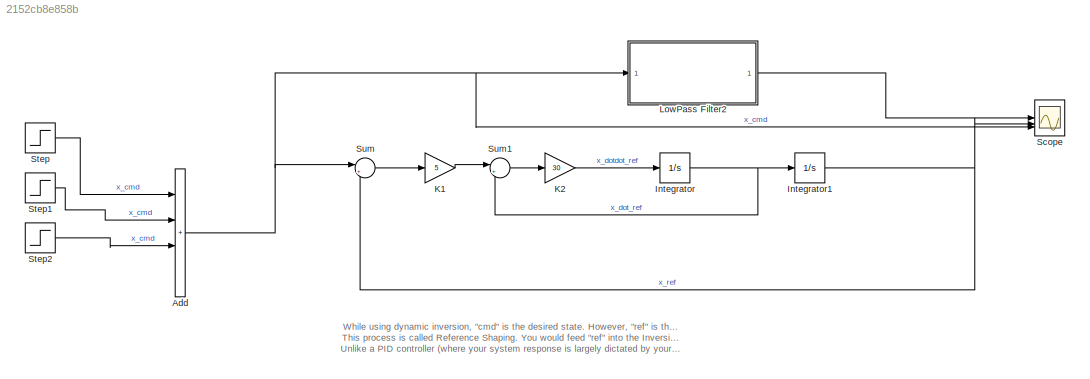
MODEL slx_2152cb8e858b
KIND model
CONFIG AbsTol = auto
CONFIG EnableMultiTasking = off
CONFIG FixedStep = 0.001
CONFIG MaxStep = auto
CONFIG MinStep = auto
CONFIG RelTol = 1e-3
CONFIG SampleTimeConstraint = Unconstrained
CONFIG SolverName = FixedStepAuto
CONFIG StartTime = 0.0
CONFIG StopTime = 25
BLOCK [Sum] Add
  IconShape = rectangular
  Inputs = ++++
BLOCK [Integrator] Integrator
BLOCK [Integrator] Integrator1
BLOCK [Gain] K1
  Gain = 5
BLOCK [Gain] K2
  Gain = 30
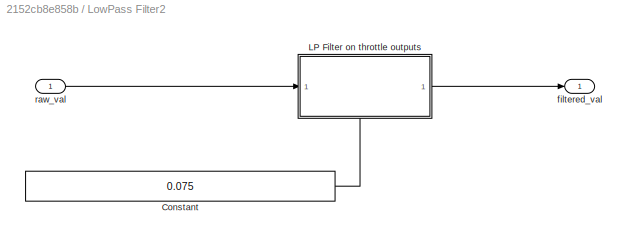
BLOCK [SubSystem] LowPass Filter2
  NameLocation = top
  PortSchema = {"entries":[{"content":{"sides":[{"content":{"connectorIds":["Out1"]},"type":"ConnectorPlacement.EquallySpacedRectSide","uuid":"91cc3e13-2b14-472d-8884-d1975898cd34"},{"content":{"connectorIds":["In1"],"side":"RIGHT"},"type":"ConnectorPlacement.EquallySpacedRectSide","uuid":"ce6b3021-6e32-4737-8c8e-25014706d3dd"},{"content":{"side":"TOP"},"type":"ConnectorPlacement.EquallySpacedRectSide","uuid":"a...<+348ch>
BLOCK [Constant] LowPass Filter2/Constant
  Value = 0.075
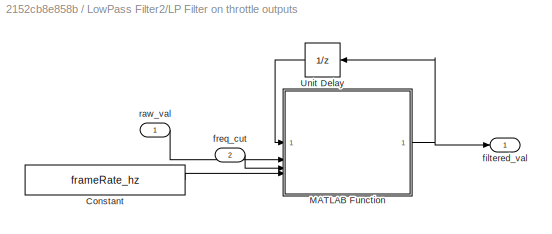
BLOCK [SubSystem] LowPass Filter2/LP Filter on throttle outputs
  NameLocation = top
  PortSchema = {"entries":[{"content":{"sides":[{"content":{"connectorIds":["In1"]},"type":"ConnectorPlacement.EquallySpacedRectSide","uuid":"20236834-aeb3-4c5b-bb2e-f84447e752b5"},{"content":{"connectorIds":["Out1"],"side":"RIGHT"},"type":"ConnectorPlacement.EquallySpacedRectSide","uuid":"d668f9a1-a3df-4207-8bf1-99fb838e59b2"},{"content":{"connectorIds":[],"side":"TOP"},"type":"ConnectorPlacement.EquallySpacedR...<+389ch>
BLOCK [Constant] LowPass Filter2/LP Filter on throttle outputs/Constant
  OutDataTypeStr = single
  Value = frameRate_hz
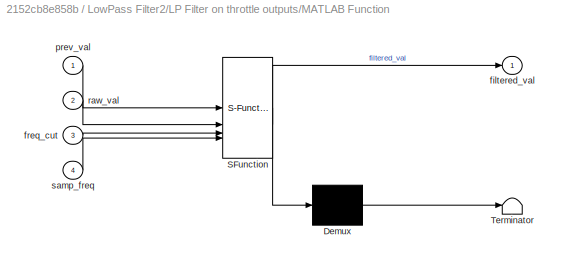
BLOCK [SubSystem] LowPass Filter2/LP Filter on throttle outputs/MATLAB Function
  ErrorFcn = Stateflow.Translate.translate
  PermitHierarchicalResolution = ExplicitOnly
  SFBlockType = MATLAB Function
  TreatAsAtomicUnit = on
BLOCK [Demux] LowPass Filter2/LP Filter on throttle outputs/MATLAB Function/ Demux 
  Outputs = 1
BLOCK [S-Function] LowPass Filter2/LP Filter on throttle outputs/MATLAB Function/ SFunction 
  EnableBusSupport = on
  FunctionName = sf_sfun
  PortCounts = [4 2]
  SFcnIsStateOwnerBlock = off
  SFunctionDeploymentMode = off
  Tag = Stateflow S-Function 20
BLOCK [Terminator] LowPass Filter2/LP Filter on throttle outputs/MATLAB Function/ Terminator 
BLOCK [Outport] LowPass Filter2/LP Filter on throttle outputs/MATLAB Function/filtered_val
BLOCK [Inport] LowPass Filter2/LP Filter on throttle outputs/MATLAB Function/freq_cut
  Port = 3
BLOCK [Inport] LowPass Filter2/LP Filter on throttle outputs/MATLAB Function/prev_val
BLOCK [Inport] LowPass Filter2/LP Filter on throttle outputs/MATLAB Function/raw_val
  Port = 2
BLOCK [Inport] LowPass Filter2/LP Filter on throttle outputs/MATLAB Function/samp_freq
  Port = 4
BLOCK [UnitDelay] LowPass Filter2/LP Filter on throttle outputs/Unit Delay
  HasFrameUpgradeWarning = on
  NameLocation = top
  SampleTime = -1
BLOCK [Outport] LowPass Filter2/LP Filter on throttle outputs/filtered_val
BLOCK [Inport] LowPass Filter2/LP Filter on throttle outputs/freq_cut
  Port = 2
BLOCK [Inport] LowPass Filter2/LP Filter on throttle outputs/raw_val
BLOCK [Outport] LowPass Filter2/filtered_val
BLOCK [Inport] LowPass Filter2/raw_val
BLOCK [Scope] Scope
  Floating = off
  NumInputPorts = 3
  ScopeSpecificationString = Simulink.scopes.TimeScopeBlockCfg('CurrentConfiguration', extmgr.ConfigurationSet(extmgr.Configuration('Core','General UI',true),extmgr.Configuration('Core','Source UI',true),extmgr.Configuration('Sources','WiredSimulink',true),extmgr.Configuration('Visuals','Time Domain',true,'SerializedDisplays',{struct('MinYLimReal','-1.45836','MaxYLimReal','1.37063','YLabelReal','','MinYLimMag','0.00000','MaxY...<+1493ch>
BLOCK [Step] Step
  SampleTime = 0
BLOCK [Step] Step1
  After = -1
  Before = 1
  SampleTime = 0
  Time = 9
BLOCK [Step] Step2
  After = 0
  Before = -1
  SampleTime = 0
  Time = 17
BLOCK [Sum] Sum
  Inputs = |+-
BLOCK [Sum] Sum1
  Inputs = |+-
ANNOTATION (root): While using dynamic inversion, "cmd" is the desired state. However, "ref" is the desired response from the inverted plant. This process is called Reference Shaping. You would feed "ref" into the Inversion Based Controller, that creates a linear dynamics on the error, and causes the plant to follow a "reference response". Unlike a PID controller (where your system response is largely dictated by yo...<+136ch>
NET Add:1 -> LowPass Filter2:1, Scope:3, Sum:1
NET Integrator1:1 -> Scope:2, Sum:2
NET Integrator:1 -> Integrator1:1, Sum1:2
LINE K1:1 -> Sum1:1
LINE K2:1 -> Integrator:1
LINE LowPass Filter2/Constant:1 -> LowPass Filter2/LP Filter on throttle outputs:2
LINE LowPass Filter2/LP Filter on throttle outputs/Constant:1 -> LowPass Filter2/LP Filter on throttle outputs/MATLAB Function:4
NET LowPass Filter2/LP Filter on throttle outputs/MATLAB Function:1 -> LowPass Filter2/LP Filter on throttle outputs/Unit Delay:1, LowPass Filter2/LP Filter on throttle outputs/filtered_val:1
LINE LowPass Filter2/LP Filter on throttle outputs/Unit Delay:1 -> LowPass Filter2/LP Filter on throttle outputs/MATLAB Function:1
LINE LowPass Filter2/LP Filter on throttle outputs/freq_cut:1 -> LowPass Filter2/LP Filter on throttle outputs/MATLAB Function:3
LINE LowPass Filter2/LP Filter on throttle outputs/raw_val:1 -> LowPass Filter2/LP Filter on throttle outputs/MATLAB Function:2
LINE LowPass Filter2/LP Filter on throttle outputs:1 -> LowPass Filter2/filtered_val:1
LINE LowPass Filter2/raw_val:1 -> LowPass Filter2/LP Filter on throttle outputs:1
LINE LowPass Filter2:1 -> Scope:1
LINE Step1:1 -> Add:2
LINE Step2:1 -> Add:3
LINE Step:1 -> Add:1
LINE Sum1:1 -> K2:1
LINE Sum:1 -> K1:1
note: NET lines group one-source signal fan-out (src -> all destinations, sorted); 1:1 wires keep LINE
CHART LowPass Filter2/LP Filter on throttle outputs/MATLAB Function states=1 transitions=1
  STATE_LABEL 'eML_blk_kernel()'
  STATE_LABEL 'SCRIPT:\nfunction filtered_val = IIR_filt( prev_val,raw_val, freq_cut, samp_freq)\n    fc = freq_cut/samp_freq;\n    b = 2 - cos(2 * pi * fc) - sqrt((2 - cos(2 * pi * fc))^2 - 1);\n    a = 1 - b;\n    filtered_val = a * raw_val + b * prev_val;\n'
CHART  states=0 transitions=0
